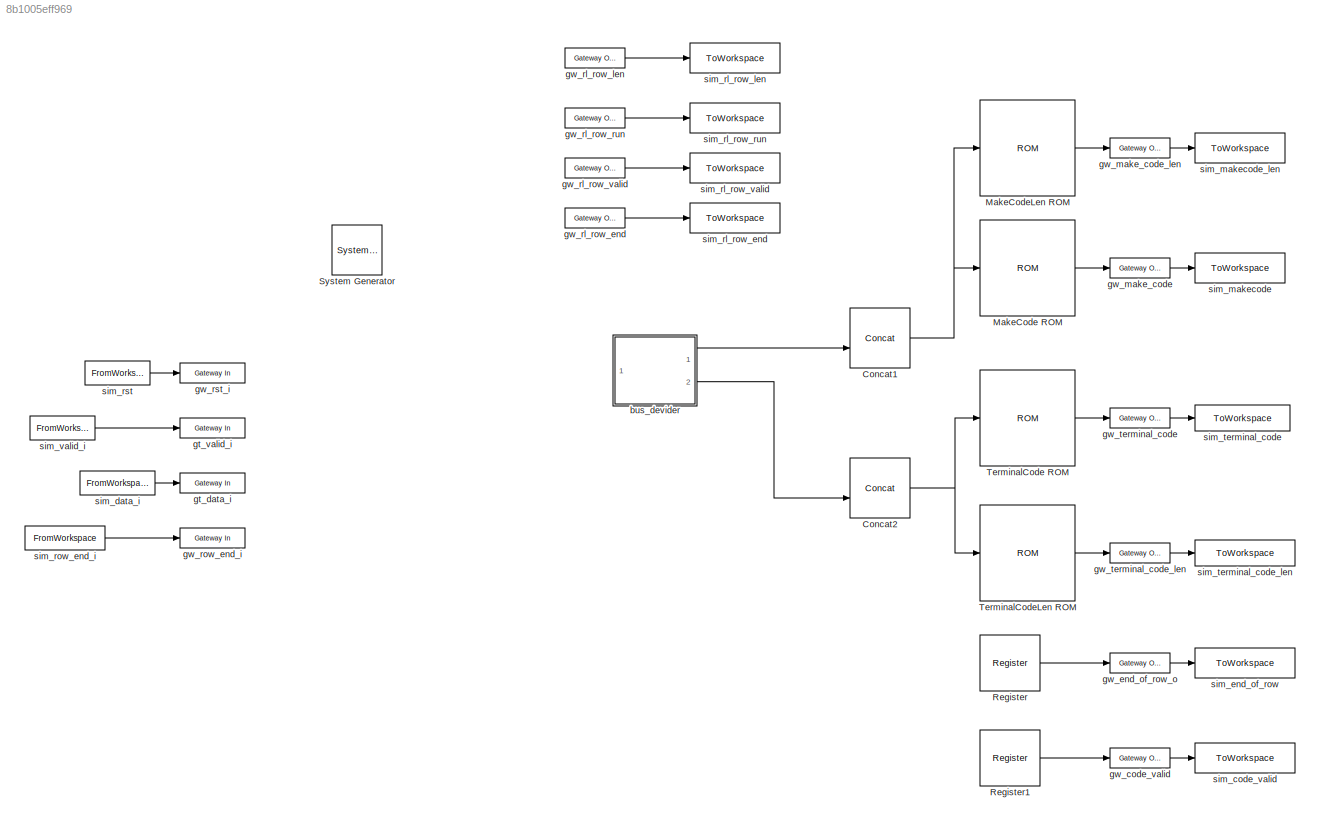
MODEL slx_8b1005eff969
KIND model
CONFIG AbsTol = auto
CONFIG FixedStep = auto
CONFIG MaxStep = auto
CONFIG MinStep = auto
CONFIG PreLoadFcn = if exist('loadData')\n    loadData\nend
CONFIG RelTol = 1e-3
CONFIG SampleTimeConstraint = Unconstrained
CONFIG Solver = VariableStepAuto
CONFIG SolverMode = Auto
CONFIG SolverName = VariableStepAuto
CONFIG StartTime = 0.0
CONFIG StopFcn = if exist('processOutput')\n    processOutput\nend
CONFIG StopTime = sim_time
BLOCK [Reference]  System Generator  REF=xbsIndex_r4/ System Generator
  AttributesFormatString = System\nGenerator
  Ports = []
  SourceBlock = xbsIndex_r4/ System Generator
  SourceType = Xilinx System Generator Block
  Tag = genX
  UserDataPersistent = on
BLOCK [Reference] Concat1  REF=xbsIndex_r4/Concat
  Ports = [2, 1]
  SourceBlock = xbsIndex_r4/Concat
  SourceType = Xilinx Bus Concatenator Block
BLOCK [Reference] Concat2  REF=xbsIndex_r4/Concat
  Ports = [2, 1]
  SourceBlock = xbsIndex_r4/Concat
  SourceType = Xilinx Bus Concatenator Block
BLOCK [Reference] MakeCode ROM  REF=xbsIndex_r4/ROM
  Ports = [1, 1]
  SourceBlock = xbsIndex_r4/ROM
  SourceType = Xilinx Single Port Read-Only Memory Block
BLOCK [Reference] MakeCodeLen ROM  REF=xbsIndex_r4/ROM
  Ports = [1, 1]
  SourceBlock = xbsIndex_r4/ROM
  SourceType = Xilinx Single Port Read-Only Memory Block
BLOCK [Reference] Register  REF=xbsIndex_r4/Register
  Ports = [1, 1]
  SourceBlock = xbsIndex_r4/Register
  SourceType = Xilinx Register Block
BLOCK [Reference] Register1  REF=xbsIndex_r4/Register
  Ports = [1, 1]
  SourceBlock = xbsIndex_r4/Register
  SourceType = Xilinx Register Block
BLOCK [Reference] TerminalCode ROM  REF=xbsIndex_r4/ROM
  Ports = [1, 1]
  SourceBlock = xbsIndex_r4/ROM
  SourceType = Xilinx Single Port Read-Only Memory Block
BLOCK [Reference] TerminalCodeLen ROM  REF=xbsIndex_r4/ROM
  Ports = [1, 1]
  SourceBlock = xbsIndex_r4/ROM
  SourceType = Xilinx Single Port Read-Only Memory Block
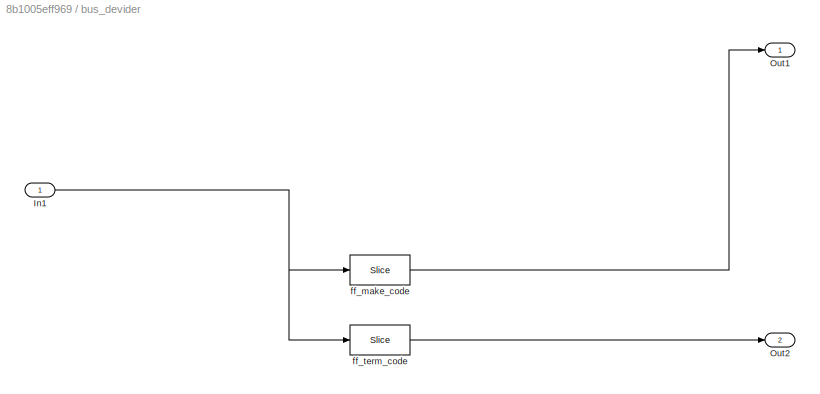
BLOCK [SubSystem] bus_devider
  Ports = [1, 2]
  RequestExecContextInheritance = off
  Variant = off
BLOCK [Inport] bus_devider/In1
  IconDisplay = Port number
BLOCK [Outport] bus_devider/Out1
  IconDisplay = Port number
BLOCK [Outport] bus_devider/Out2
  IconDisplay = Port number
  Port = 2
BLOCK [Reference] bus_devider/ff_make_code  REF=xbsIndex_r4/Slice
  Ports = [1, 1]
  SourceBlock = xbsIndex_r4/Slice
  SourceType = Xilinx Bit Slice Extractor Block
BLOCK [Reference] bus_devider/ff_term_code  REF=xbsIndex_r4/Slice
  Ports = [1, 1]
  SourceBlock = xbsIndex_r4/Slice
  SourceType = Xilinx Bit Slice Extractor Block
BLOCK [Reference] gt_data_i  REF=xbsIndex_r4/Gateway In
  Ports = [1, 1]
  SourceBlock = xbsIndex_r4/Gateway In
  SourceType = Xilinx Gateway In Block
BLOCK [Reference] gt_valid_i  REF=xbsIndex_r4/Gateway In
  Ports = [1, 1]
  SourceBlock = xbsIndex_r4/Gateway In
  SourceType = Xilinx Gateway In Block
BLOCK [Reference] gw_code_valid  REF=xbsIndex_r4/Gateway Out
  Ports = [1, 1]
  SourceBlock = xbsIndex_r4/Gateway Out
  SourceType = Xilinx Gateway Out Block
BLOCK [Reference] gw_end_of_row_o  REF=xbsIndex_r4/Gateway Out
  Ports = [1, 1]
  SourceBlock = xbsIndex_r4/Gateway Out
  SourceType = Xilinx Gateway Out Block
BLOCK [Reference] gw_make_code  REF=xbsIndex_r4/Gateway Out
  Ports = [1, 1]
  SourceBlock = xbsIndex_r4/Gateway Out
  SourceType = Xilinx Gateway Out Block
BLOCK [Reference] gw_make_code_len  REF=xbsIndex_r4/Gateway Out
  Ports = [1, 1]
  SourceBlock = xbsIndex_r4/Gateway Out
  SourceType = Xilinx Gateway Out Block
BLOCK [Reference] gw_rl_row_end  REF=xbsIndex_r4/Gateway Out
  Ports = [1, 1]
  SourceBlock = xbsIndex_r4/Gateway Out
  SourceType = Xilinx Gateway Out Block
BLOCK [Reference] gw_rl_row_len  REF=xbsIndex_r4/Gateway Out
  Ports = [1, 1]
  SourceBlock = xbsIndex_r4/Gateway Out
  SourceType = Xilinx Gateway Out Block
BLOCK [Reference] gw_rl_row_run  REF=xbsIndex_r4/Gateway Out
  Ports = [1, 1]
  SourceBlock = xbsIndex_r4/Gateway Out
  SourceType = Xilinx Gateway Out Block
BLOCK [Reference] gw_rl_row_valid  REF=xbsIndex_r4/Gateway Out
  Ports = [1, 1]
  SourceBlock = xbsIndex_r4/Gateway Out
  SourceType = Xilinx Gateway Out Block
BLOCK [Reference] gw_row_end_i  REF=xbsIndex_r4/Gateway In
  Ports = [1, 1]
  SourceBlock = xbsIndex_r4/Gateway In
  SourceType = Xilinx Gateway In Block
BLOCK [Reference] gw_rst_i  REF=xbsIndex_r4/Gateway In
  Ports = [1, 1]
  SourceBlock = xbsIndex_r4/Gateway In
  SourceType = Xilinx Gateway In Block
BLOCK [Reference] gw_terminal_code  REF=xbsIndex_r4/Gateway Out
  Ports = [1, 1]
  SourceBlock = xbsIndex_r4/Gateway Out
  SourceType = Xilinx Gateway Out Block
BLOCK [Reference] gw_terminal_code_len  REF=xbsIndex_r4/Gateway Out
  Ports = [1, 1]
  SourceBlock = xbsIndex_r4/Gateway Out
  SourceType = Xilinx Gateway Out Block
BLOCK [ToWorkspace] sim_code_valid
  FixptAsFi = on
  MaxDataPoints = inf
  Ports = [1]
  SampleTime = -1
  Save2DSignal = 3-D array (concatenate along third dimension)
  SaveFormat = Timeseries
  VariableName = code_valid
BLOCK [FromWorkspace] sim_data_i
  SampleTime = 0
  VariableName = sim_data_i
  ZeroCross = on
BLOCK [ToWorkspace] sim_end_of_row
  FixptAsFi = on
  MaxDataPoints = inf
  Ports = [1]
  SampleTime = -1
  Save2DSignal = 3-D array (concatenate along third dimension)
  SaveFormat = Timeseries
  VariableName = code_eor
BLOCK [ToWorkspace] sim_makecode
  FixptAsFi = on
  MaxDataPoints = inf
  Ports = [1]
  SampleTime = -1
  Save2DSignal = 3-D array (concatenate along third dimension)
  SaveFormat = Timeseries
  VariableName = code_make_val
BLOCK [ToWorkspace] sim_makecode_len
  FixptAsFi = on
  MaxDataPoints = inf
  Ports = [1]
  SampleTime = -1
  Save2DSignal = 3-D array (concatenate along third dimension)
  SaveFormat = Timeseries
  VariableName = code_make_len
BLOCK [ToWorkspace] sim_rl_row_end
  FixptAsFi = on
  MaxDataPoints = inf
  Ports = [1]
  SampleTime = -1
  Save2DSignal = 3-D array (concatenate along third dimension)
  SaveFormat = Timeseries
  VariableName = rl_row_end
BLOCK [ToWorkspace] sim_rl_row_len
  FixptAsFi = on
  MaxDataPoints = inf
  Ports = [1]
  SampleTime = -1
  Save2DSignal = 3-D array (concatenate along third dimension)
  SaveFormat = Timeseries
  VariableName = rl_row_len
BLOCK [ToWorkspace] sim_rl_row_run
  FixptAsFi = on
  MaxDataPoints = inf
  Ports = [1]
  SampleTime = -1
  Save2DSignal = 3-D array (concatenate along third dimension)
  SaveFormat = Timeseries
  VariableName = rl_row_run
BLOCK [ToWorkspace] sim_rl_row_valid
  FixptAsFi = on
  MaxDataPoints = inf
  Ports = [1]
  SampleTime = -1
  Save2DSignal = 3-D array (concatenate along third dimension)
  SaveFormat = Timeseries
  VariableName = rl_row_valid
BLOCK [FromWorkspace] sim_row_end_i
  SampleTime = 0
  VariableName = sim_row_end_i
  ZeroCross = on
BLOCK [FromWorkspace] sim_rst
  SampleTime = 0
  VariableName = sim_rst
  ZeroCross = on
BLOCK [ToWorkspace] sim_terminal_code
  FixptAsFi = on
  MaxDataPoints = inf
  Ports = [1]
  SampleTime = -1
  Save2DSignal = 3-D array (concatenate along third dimension)
  SaveFormat = Timeseries
  VariableName = code_terminal_val
BLOCK [ToWorkspace] sim_terminal_code_len
  FixptAsFi = on
  MaxDataPoints = inf
  Ports = [1]
  SampleTime = -1
  Save2DSignal = 3-D array (concatenate along third dimension)
  SaveFormat = Timeseries
  VariableName = code_terminal_len
BLOCK [FromWorkspace] sim_valid_i
  SampleTime = 0
  VariableName = sim_valid_i
  ZeroCross = on
NET Concat1:1 -> MakeCode ROM:1, MakeCodeLen ROM:1
NET Concat2:1 -> TerminalCode ROM:1, TerminalCodeLen ROM:1
LINE MakeCode ROM:1 -> gw_make_code:1
LINE MakeCodeLen ROM:1 -> gw_make_code_len:1
LINE Register1:1 -> gw_code_valid:1
LINE Register:1 -> gw_end_of_row_o:1
LINE TerminalCode ROM:1 -> gw_terminal_code:1
LINE TerminalCodeLen ROM:1 -> gw_terminal_code_len:1
NET bus_devider/In1:1 -> bus_devider/ff_make_code:1, bus_devider/ff_term_code:1
LINE bus_devider/ff_make_code:1 -> bus_devider/Out1:1
LINE bus_devider/ff_term_code:1 -> bus_devider/Out2:1
LINE bus_devider:1 -> Concat1:2
LINE bus_devider:2 -> Concat2:2
LINE gw_code_valid:1 -> sim_code_valid:1
LINE gw_end_of_row_o:1 -> sim_end_of_row:1
LINE gw_make_code:1 -> sim_makecode:1
LINE gw_make_code_len:1 -> sim_makecode_len:1
LINE gw_rl_row_end:1 -> sim_rl_row_end:1
LINE gw_rl_row_len:1 -> sim_rl_row_len:1
LINE gw_rl_row_run:1 -> sim_rl_row_run:1
LINE gw_rl_row_valid:1 -> sim_rl_row_valid:1
LINE gw_terminal_code:1 -> sim_terminal_code:1
LINE gw_terminal_code_len:1 -> sim_terminal_code_len:1
LINE sim_data_i:1 -> gt_data_i:1
LINE sim_row_end_i:1 -> gw_row_end_i:1
LINE sim_rst:1 -> gw_rst_i:1
LINE sim_valid_i:1 -> gt_valid_i:1
note: NET lines group one-source signal fan-out (src -> all destinations, sorted); 1:1 wires keep LINE
